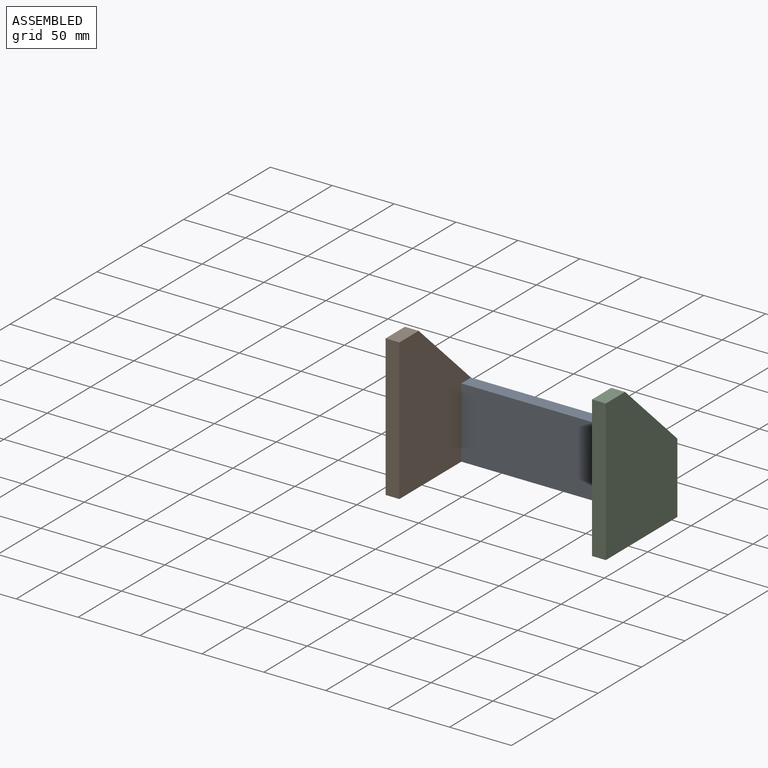
[diagram: assembled view]
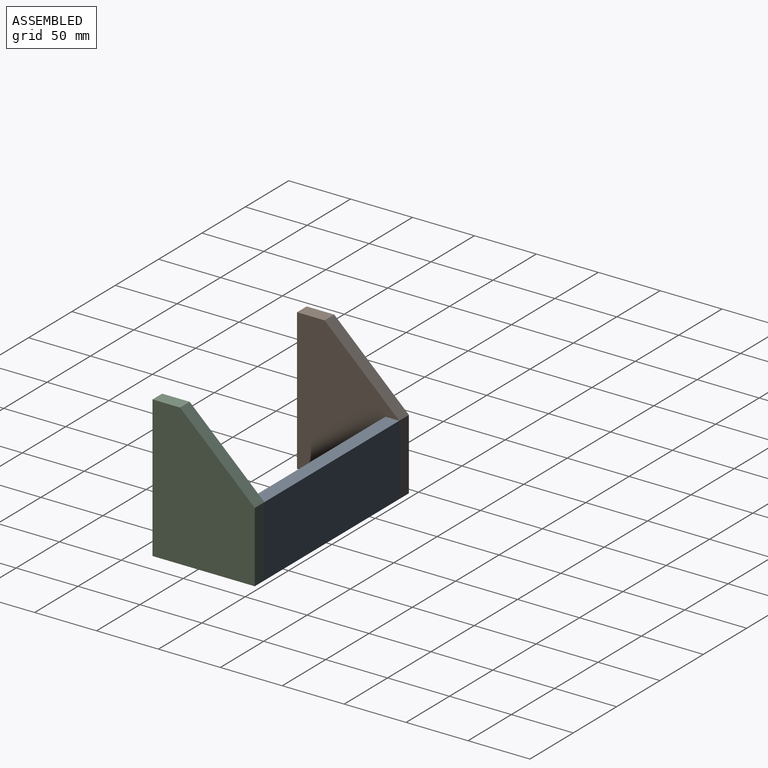
[diagram: assembled view, second angle]
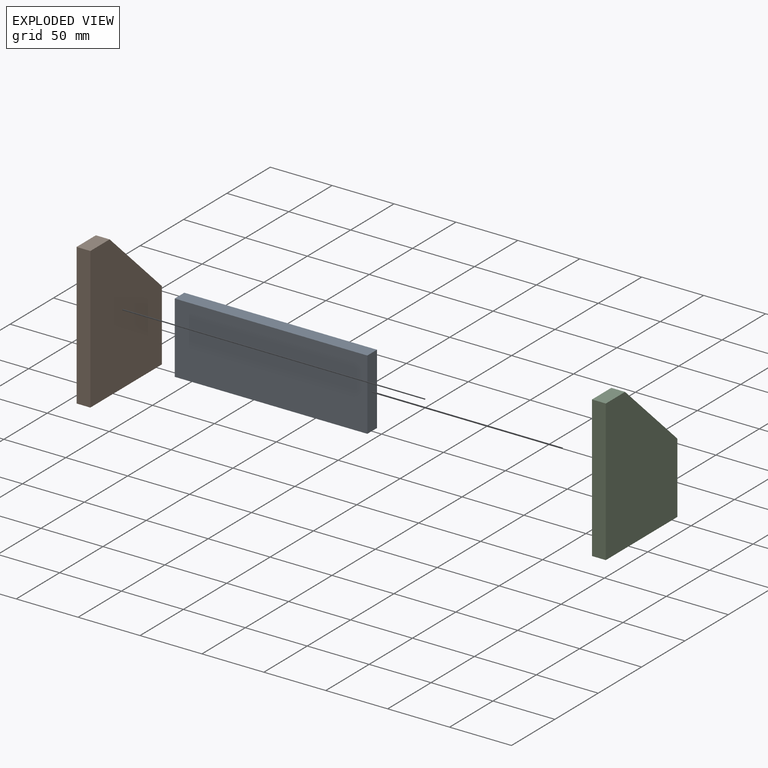
[diagram: exploded view]
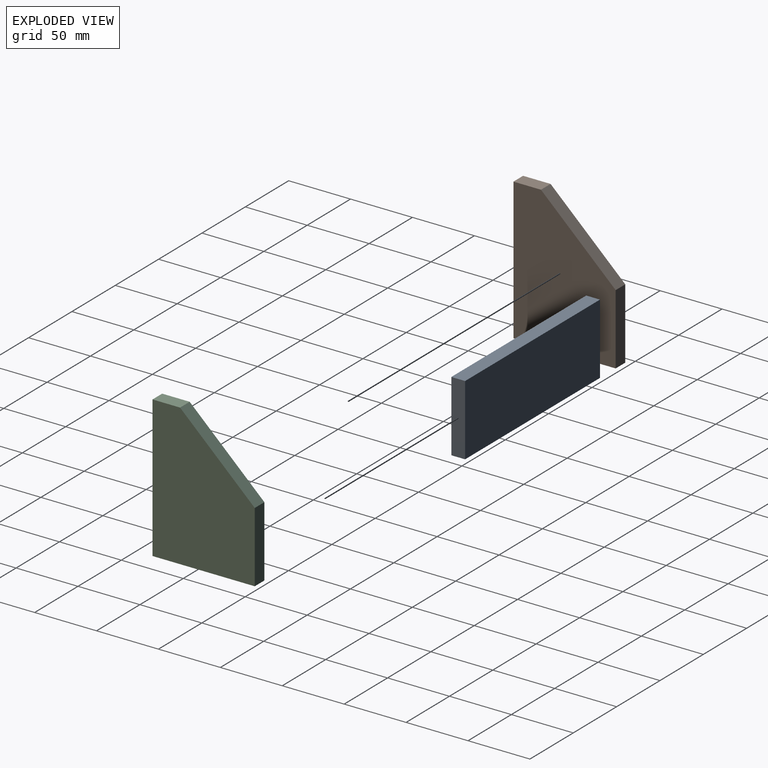
[diagram: exploded view, second angle]
ASSEMBLY  parts=3 mates=2
PART A: 6 faces, bbox 155.6x11.1x57.2 mm
  f0: plane 155.58x11.11mm, normal (0,0,-1), area 1728.8mm2, adj f1,f3,f4,f5
  f1: plane 57.15x11.11mm, normal (1,0,0), area 635.1mm2, adj f0,f2,f4,f5
  f2: plane 155.58x11.11mm, normal (0,0,1), area 1728.8mm2, adj f1,f3,f4,f5
  f3: plane 57.15x11.11mm, normal (-1,0,0), area 635.1mm2, adj f0,f2,f4,f5
  f4: plane 155.58x57.15mm, normal (0,-1,0), area 8891.1mm2, adj f0,f1,f2,f3
  f5: plane 155.58x57.15mm, normal (0,1,0), area 8891.1mm2, adj f0,f1,f2,f3
PART B: 7 faces, bbox 11.1x82.6x114.3 mm
  f0: plane 114.3x11.11mm, normal (0,-1,0), area 1270.2mm2, adj f1,f4,f5,f6
  f1: plane 82.55x11.11mm, normal (0,0,-1), area 917.3mm2, adj f0,f2,f5,f6
  f2: plane 57.15x11.11mm, normal (0,1,0), area 635.1mm2, adj f1,f3,f5,f6
  f3: plane 60.33x57.15mm, normal (0,0.69,0.73), area 923.4mm2, adj f2,f4,f5,f6
  f4: plane 22.23x11.11mm, normal (0,0,1), area 247mm2, adj f0,f3,f5,f6
  f5: plane 114.3x82.55mm, normal (1,0,0), area 7711.7mm2, adj f0,f1,f2,f3,f4
  f6: plane 114.3x82.55mm, normal (-1,0,0), area 7711.7mm2, adj f0,f1,f2,f3,f4
PART C: same geometry as B
PLACE A at identity fixed
PLACE B t=(-88.9,-41.28,28.58)mm
PLACE C t=(77.79,-41.28,28.58)mm
MATE fastened C.f6 <-> A.f1  axis (-1,0,0) through (77.79,0,0)mm
MATE fastened A.f3 <-> B.f5  axis (-1,0,0) through (-77.79,0,0)mm
